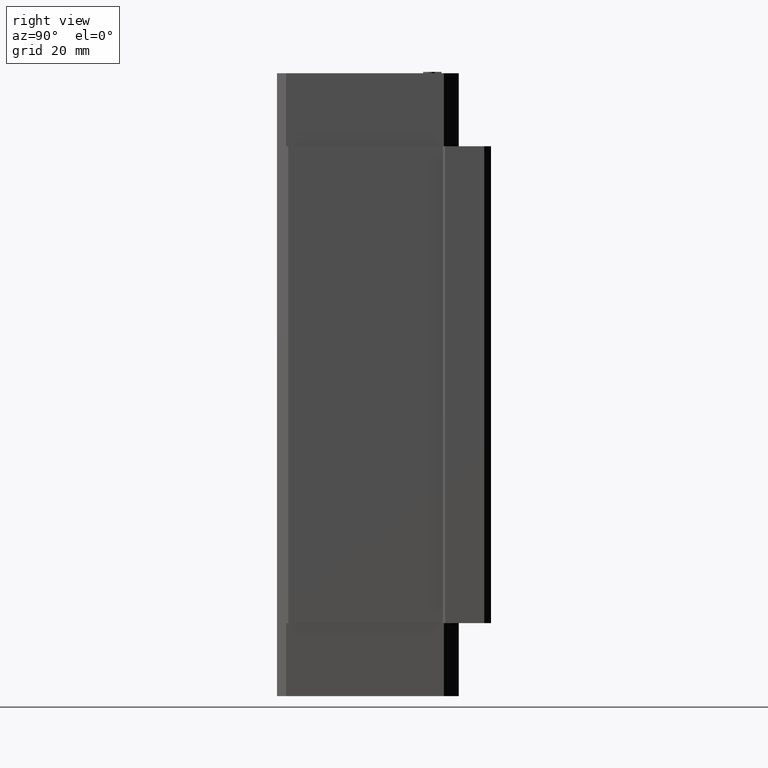
[diagram: clean part render]
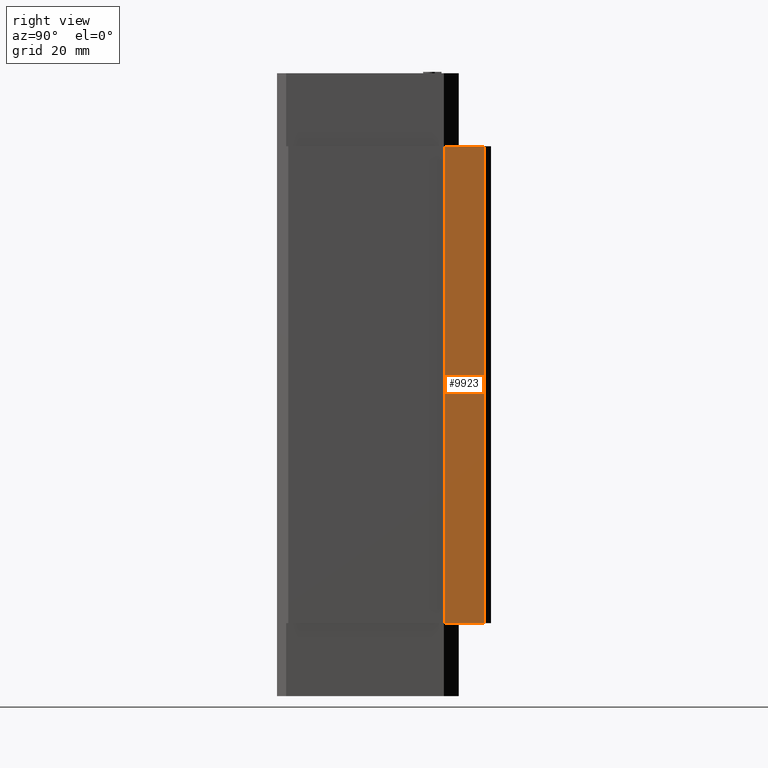
[diagram: same view with one face highlighted and labeled with its STEP entity id]
A machine part, right view. The second image highlights one B-rep face of the part: STEP entity #9923.
In plain terms, the highlighted planar face has unit normal (1, 0, 0).
Its self-contained STEP definition (entity closure, byte-faithful):
#3934 = CARTESIAN_POINT ( 'NONE',  ( 35.00000000000000000, 24.50000000000000400, 52.90000000000000600 ) ) ;
#3935 = DIRECTION ( 'NONE',  ( 0.0000000000000000000, 0.0000000000000000000, -1.000000000000000000 ) ) ;
#3936 = VECTOR ( 'NONE', #3935, 1000.000000000000000 ) ;
#3937 = CARTESIAN_POINT ( 'NONE',  ( 35.00000000000000000, 24.50000000000000000, -52.90000000000000600 ) ) ;
#3938 = LINE ( 'NONE', #3937, #3936 ) ;
#3939 = CARTESIAN_POINT ( 'NONE',  ( 35.00000000000000000, 24.50000000000000400, -52.90000000000000600 ) ) ;
#3940 = DIRECTION ( 'NONE',  ( 0.0000000000000000000, 1.000000000000000000, 0.0000000000000000000 ) ) ;
#3941 = VECTOR ( 'NONE', #3940, 1000.000000000000000 ) ;
#3942 = CARTESIAN_POINT ( 'NONE',  ( 35.00000000000000000, 0.0000000000000000000, -52.90000000000000600 ) ) ;
#3943 = LINE ( 'NONE', #3942, #3941 ) ;
#3944 = DIRECTION ( 'NONE',  ( 0.0000000000000000000, 0.0000000000000000000, -1.000000000000000000 ) ) ;
#3945 = DIRECTION ( 'NONE',  ( 1.000000000000000000, 0.0000000000000000000, 0.0000000000000000000 ) ) ;
#3946 = CARTESIAN_POINT ( 'NONE',  ( 35.00000000000000000, 15.79999999824000100, -52.90000000000000600 ) ) ;
#3947 = AXIS2_PLACEMENT_3D ( 'NONE', #3946, #3945, #3944 ) ;
#3948 = PLANE ( 'NONE',  #3947 ) ;
#3949 = FACE_OUTER_BOUND ( 'NONE', #10010, .T. ) ;
#3967 = DIRECTION ( 'NONE',  ( 0.0000000000000000000, 1.000000000000000000, 0.0000000000000000000 ) ) ;
#3968 = VECTOR ( 'NONE', #3967, 1000.000000000000000 ) ;
#3969 = CARTESIAN_POINT ( 'NONE',  ( 35.00000000000000000, 0.0000000000000000000, 52.90000000000000600 ) ) ;
#3970 = LINE ( 'NONE', #3969, #3968 ) ;
#4017 = CARTESIAN_POINT ( 'NONE',  ( 34.99999999999999300, 15.79999999824001700, -52.90000000000000600 ) ) ;
#4074 = CARTESIAN_POINT ( 'NONE',  ( 34.99999999999999300, 15.79999999824001700, 52.90000000000000600 ) ) ;
#4075 = DIRECTION ( 'NONE',  ( 0.0000000000000000000, 0.0000000000000000000, -1.000000000000000000 ) ) ;
#4076 = VECTOR ( 'NONE', #4075, 1000.000000000000000 ) ;
#4077 = CARTESIAN_POINT ( 'NONE',  ( 35.00000000000000000, 15.79999999824000100, -52.90000000000000600 ) ) ;
#4078 = LINE ( 'NONE', #4077, #4076 ) ;
#9923 = ADVANCED_FACE ( 'NONE', ( #3949 ), #3948, .T. ) ;
#9924 = ORIENTED_EDGE ( 'NONE', *, *, #10006, .T. ) ;
#9925 = ORIENTED_EDGE ( 'NONE', *, *, #9926, .T. ) ;
#9926 = EDGE_CURVE ( 'NONE', #10004, #9927, #3943, .T. ) ;
#9927 = VERTEX_POINT ( 'NONE', #3939 ) ;
#9928 = ORIENTED_EDGE ( 'NONE', *, *, #9929, .F. ) ;
#9929 = EDGE_CURVE ( 'NONE', #9930, #9927, #3938, .T. ) ;
#9930 = VERTEX_POINT ( 'NONE', #3934 ) ;
#9957 = ORIENTED_EDGE ( 'NONE', *, *, #9958, .F. ) ;
#9958 = EDGE_CURVE ( 'NONE', #10007, #9930, #3970, .T. ) ;
#10004 = VERTEX_POINT ( 'NONE', #4017 ) ;
#10006 = EDGE_CURVE ( 'NONE', #10007, #10004, #4078, .T. ) ;
#10007 = VERTEX_POINT ( 'NONE', #4074 ) ;
#10010 = EDGE_LOOP ( 'NONE', ( #9924, #9925, #9928, #9957 ) ) ;